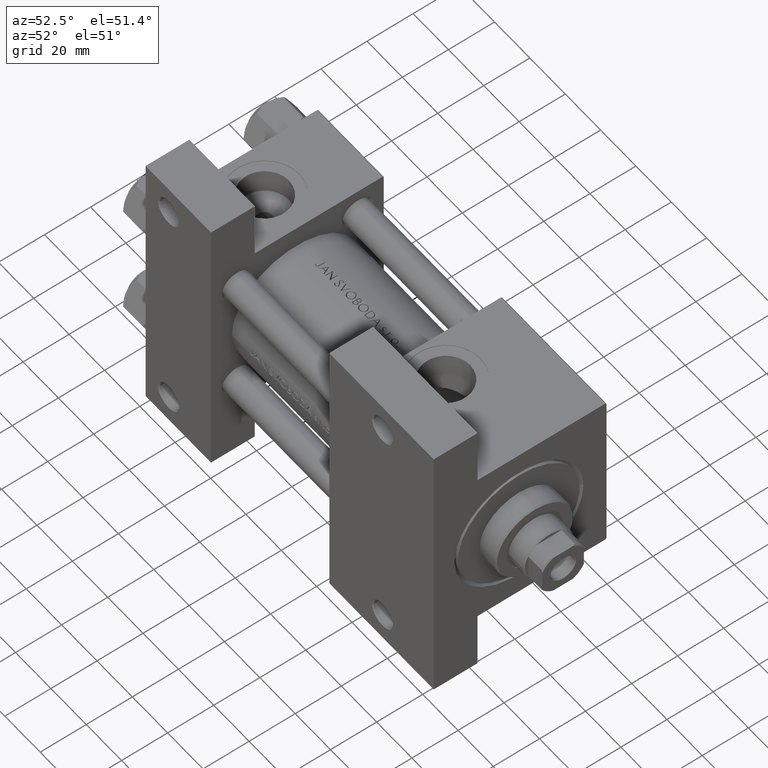
[diagram: clean part render]
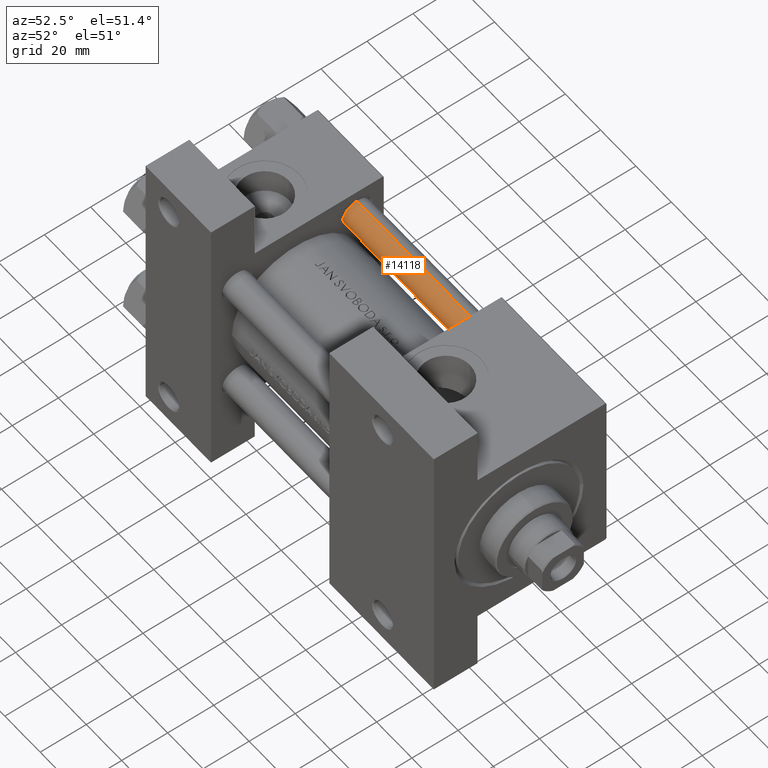
[diagram: same view with one face highlighted and labeled with its STEP entity id]
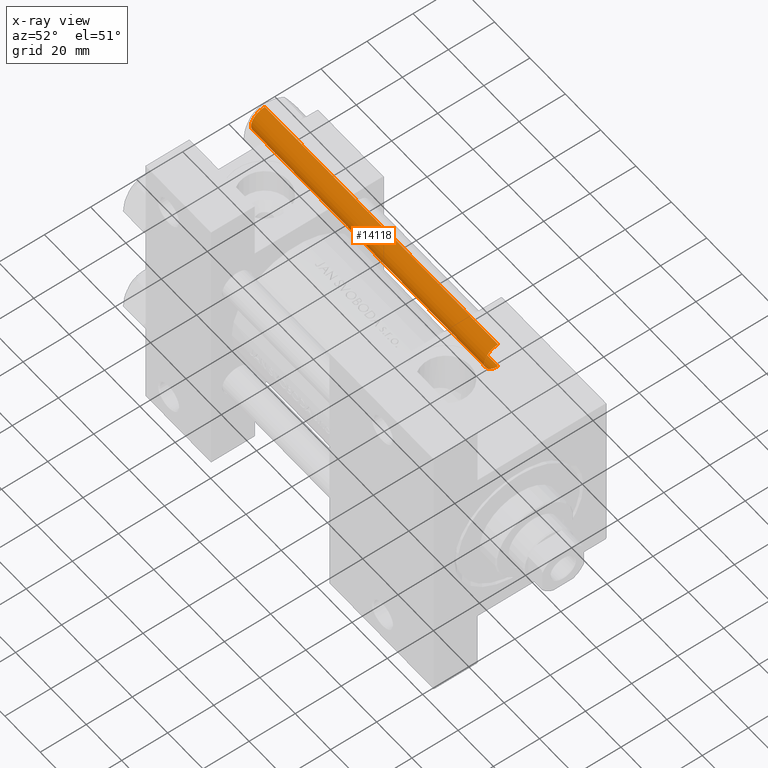
[diagram: x-ray of the same camera — body ghosted, the highlighted face saturated]
A machine part, auxiliary view. The second image highlights one B-rep face of the part: STEP entity #14118.
The next image is the same camera in x-ray: the body ghosted, the highlighted face saturated — about 0% of this face is hidden behind the body in this view.
In plain terms, the highlighted cylindrical surface (edge-blend (fillet) strip) has radius 6 mm, axis along (-1, -0, -0).
Its self-contained STEP definition (entity closure, byte-faithful):
#434 = DIRECTION ( 'NONE',  ( -0.000000000000000000, -0.000000000000000000, -1.000000000000000000 ) ) ;
#2464 = VERTEX_POINT ( 'NONE', #46291 ) ;
#3929 = CYLINDRICAL_SURFACE ( 'NONE', #39606, 6.000000000000000888 ) ;
#4439 = VECTOR ( 'NONE', #34429, 1000.000000000000000 ) ;
#4548 = VERTEX_POINT ( 'NONE', #26963 ) ;
#5634 = DIRECTION ( 'NONE',  ( -0.000000000000000000, -0.000000000000000000, -1.000000000000000000 ) ) ;
#6091 = DIRECTION ( 'NONE',  ( -0.000000000000000000, -0.000000000000000000, 1.000000000000000000 ) ) ;
#8147 = VECTOR ( 'NONE', #5634, 1000.000000000000000 ) ;
#11535 = LINE ( 'NONE', #45404, #4439 ) ;
#12175 = CIRCLE ( 'NONE', #12956, 6.000000000000000888 ) ;
#12370 = LINE ( 'NONE', #27548, #8147 ) ;
#12956 = AXIS2_PLACEMENT_3D ( 'NONE', #21117, #39794, #35316 ) ;
#13490 = CARTESIAN_POINT ( 'NONE',  ( -6.000000000000000888, 0.000000000000000000, 0.5000000000000281997 ) ) ;
#14118 = ADVANCED_FACE ( 'NONE', ( #30573 ), #3929, .T. ) ;
#14782 = AXIS2_PLACEMENT_3D ( 'NONE', #31993, #6091, #43943 ) ;
#17227 = VERTEX_POINT ( 'NONE', #13490 ) ;
#19120 = CARTESIAN_POINT ( 'NONE',  ( 0.000000000000000000, 0.000000000000000000, 133.0000000000000000 ) ) ;
#21117 = CARTESIAN_POINT ( 'NONE',  ( 0.000000000000000000, 0.000000000000000000, 132.5000000000000284 ) ) ;
#25148 = ORIENTED_EDGE ( 'NONE', *, *, #33293, .T. ) ;
#25253 = CARTESIAN_POINT ( 'NONE',  ( -6.000000000000000888, 0.000000000000000000, 132.5000000000000284 ) ) ;
#26963 = CARTESIAN_POINT ( 'NONE',  ( 6.000000000000000888, 7.347880794884120722E-16, 132.5000000000000284 ) ) ;
#27548 = CARTESIAN_POINT ( 'NONE',  ( 6.000000000000000888, 7.347880794884120722E-16, 133.0000000000000000 ) ) ;
#30573 = FACE_OUTER_BOUND ( 'NONE', #47901, .T. ) ;
#31418 = ORIENTED_EDGE ( 'NONE', *, *, #44148, .T. ) ;
#31878 = EDGE_CURVE ( 'NONE', #4548, #2464, #12370, .T. ) ;
#31993 = CARTESIAN_POINT ( 'NONE',  ( 0.000000000000000000, 0.000000000000000000, 0.5000000000000281997 ) ) ;
#33293 = EDGE_CURVE ( 'NONE', #4548, #40709, #12175, .T. ) ;
#34311 = DIRECTION ( 'NONE',  ( -1.000000000000000000, 0.000000000000000000, 0.000000000000000000 ) ) ;
#34429 = DIRECTION ( 'NONE',  ( -0.000000000000000000, -0.000000000000000000, -1.000000000000000000 ) ) ;
#35316 = DIRECTION ( 'NONE',  ( 1.000000000000000000, 0.000000000000000000, 0.000000000000000000 ) ) ;
#39606 = AXIS2_PLACEMENT_3D ( 'NONE', #19120, #434, #34311 ) ;
#39794 = DIRECTION ( 'NONE',  ( 0.000000000000000000, 0.000000000000000000, -1.000000000000000000 ) ) ;
#40709 = VERTEX_POINT ( 'NONE', #25253 ) ;
#41797 = CIRCLE ( 'NONE', #14782, 6.000000000000000888 ) ;
#42999 = ORIENTED_EDGE ( 'NONE', *, *, #31878, .F. ) ;
#43869 = EDGE_CURVE ( 'NONE', #17227, #2464, #41797, .T. ) ;
#43943 = DIRECTION ( 'NONE',  ( 1.000000000000000000, 0.000000000000000000, 0.000000000000000000 ) ) ;
#44148 = EDGE_CURVE ( 'NONE', #40709, #17227, #11535, .T. ) ;
#44732 = ORIENTED_EDGE ( 'NONE', *, *, #43869, .T. ) ;
#45404 = CARTESIAN_POINT ( 'NONE',  ( -6.000000000000000888, 0.000000000000000000, 133.0000000000000000 ) ) ;
#46291 = CARTESIAN_POINT ( 'NONE',  ( 6.000000000000000888, 7.347880794884120722E-16, 0.5000000000000281997 ) ) ;
#47901 = EDGE_LOOP ( 'NONE', ( #42999, #25148, #31418, #44732 ) ) ;